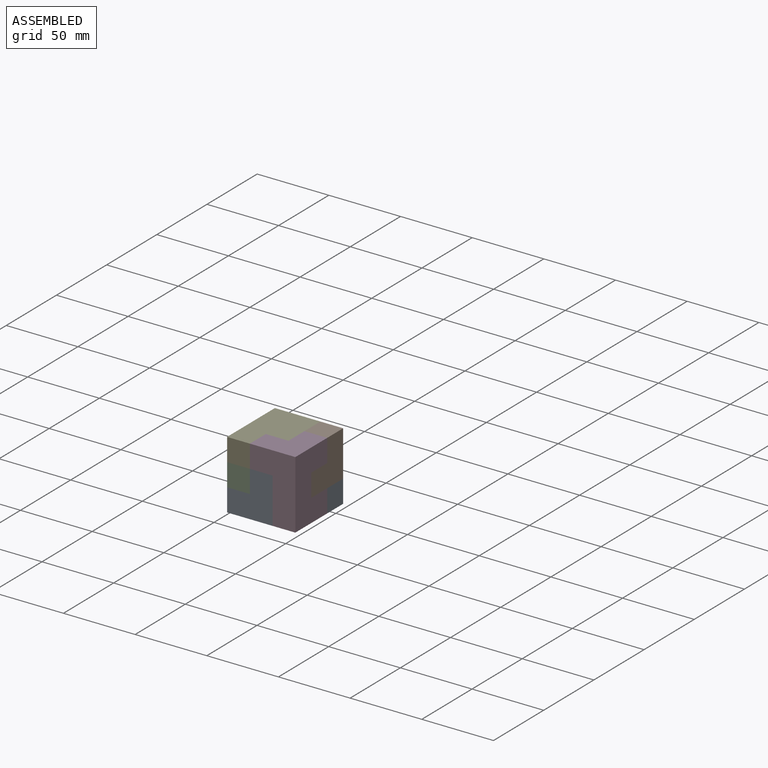
[diagram: assembled view]
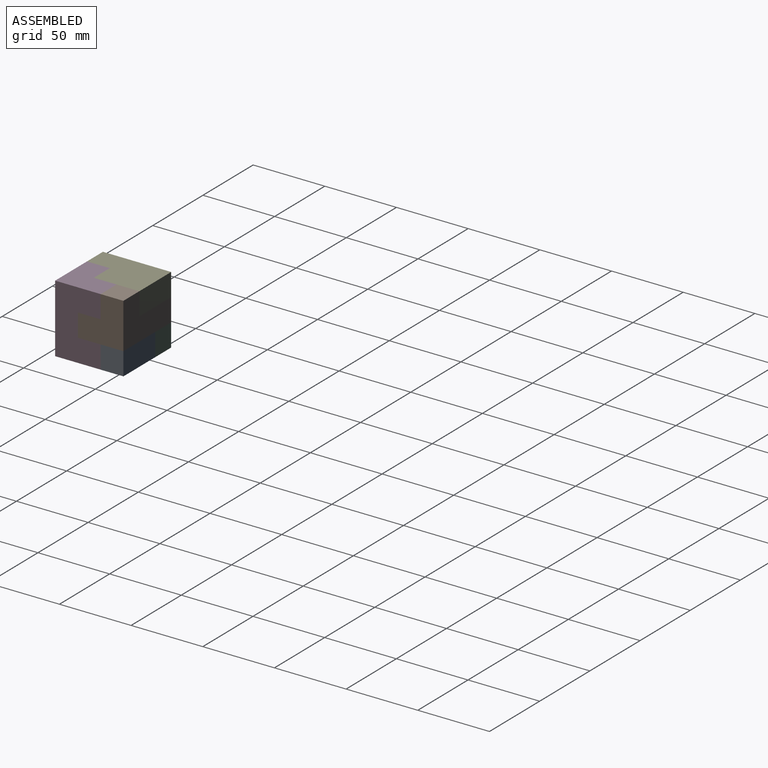
[diagram: assembled view, second angle]
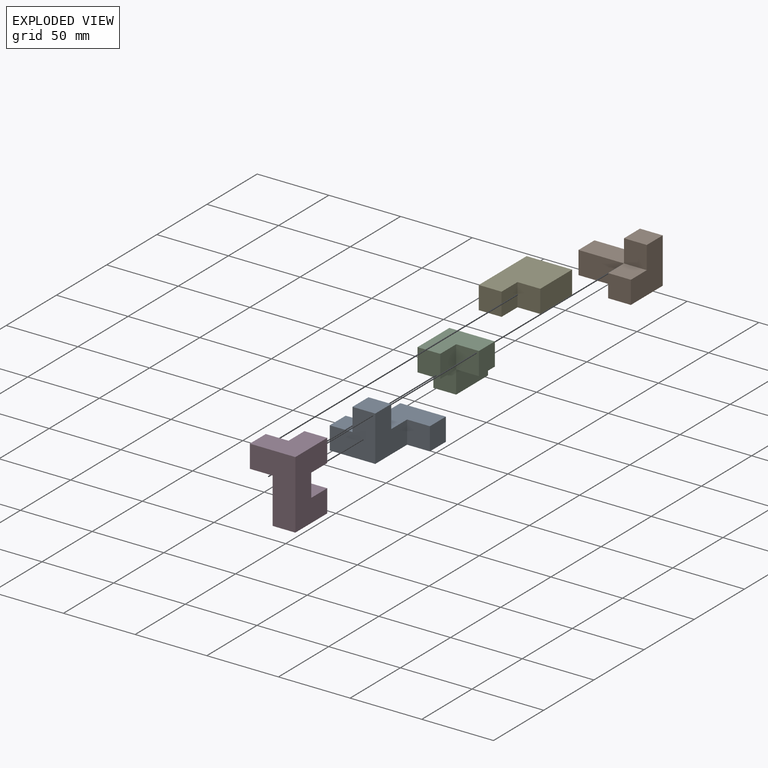
[diagram: exploded view]
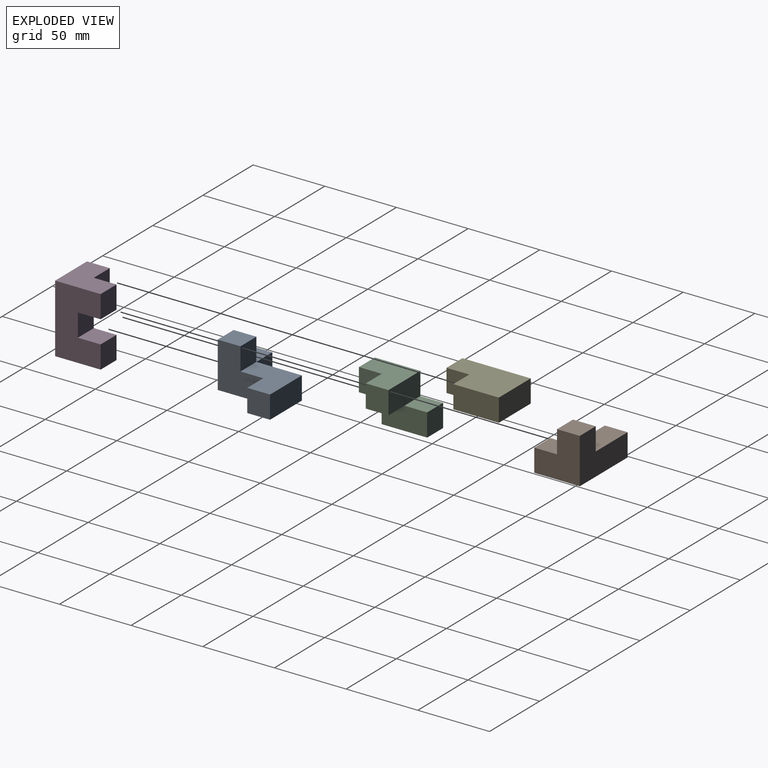
[diagram: exploded view, second angle]
ASSEMBLY  parts=5 mates=12
PART A: 14 faces, bbox 47.6x31.8x47.6 mm
  f0: plane 31.75x31.75mm, normal (1,0,0), area 756mm2, adj f3,f4,f5,f6,f10,f12
  f1: plane 15.88x15.88mm, normal (0,0,1), area 252mm2, adj f6,f7,f8,f9
  f2: plane 15.88x15.88mm, normal (-1,0,0), area 252mm2, adj f3,f4,f5,f7
  f3: plane 31.75x31.75mm, normal (0,0,-1), area 756mm2, adj f0,f2,f5,f6,f7,f8
  f4: plane 15.88x15.88mm, normal (0,0,1), area 252mm2, adj f0,f2,f5,f10
  f5: plane 15.88x15.88mm, normal (0,-1,0), area 252mm2, adj f0,f2,f3,f4
  f6: plane 47.63x47.63mm, normal (0,1,0), area 1260.1mm2, adj f0,f1,f3,f8,f9,f11,f12,f13
  f7: plane 15.88x15.88mm, normal (0,-1,0), area 252mm2, adj f1,f2,f3,f8
  f8: plane 15.88x15.88mm, normal (-1,0,0), area 252mm2, adj f1,f3,f6,f7
  f9: plane 31.75x15.88mm, normal (-1,0,0), area 504mm2, adj f1,f6,f10,f11
  f10: plane 31.75x31.75mm, normal (0,-1,0), area 756mm2, adj f0,f4,f9,f11,f12,f13
  f11: plane 31.75x15.88mm, normal (0,0,1), area 504mm2, adj f6,f9,f10,f13
  f12: plane 15.88x15.88mm, normal (0,0,-1), area 252mm2, adj f0,f6,f10,f13
  f13: plane 15.88x15.88mm, normal (1,0,0), area 252mm2, adj f6,f10,f11,f12
PART B: 12 faces, bbox 47.6x31.8x31.8 mm
  f0: plane 31.75x15.88mm, normal (0,-1,0), area 504mm2, adj f1,f4,f6,f9
  f1: plane 31.75x15.88mm, normal (0,0,-1), area 504mm2, adj f0,f3,f6,f7
  f2: plane 15.88x15.88mm, normal (0,-1,0), area 252mm2, adj f5,f7,f8,f10
  f3: plane 47.63x31.75mm, normal (0,1,0), area 1008.1mm2, adj f1,f4,f5,f6,f7,f8
  f4: plane 47.63x31.75mm, normal (0,0,1), area 1008.1mm2, adj f0,f3,f5,f6,f9,f11
  f5: plane 31.75x31.75mm, normal (1,0,0), area 756mm2, adj f2,f3,f4,f8,f10,f11
  f6: plane 15.88x15.88mm, normal (-1,0,0), area 252mm2, adj f0,f1,f3,f4
  f7: plane 15.88x15.88mm, normal (-1,0,0), area 252mm2, adj f1,f2,f3,f8
  f8: plane 15.88x15.88mm, normal (0,0,-1), area 252mm2, adj f2,f3,f5,f7
  f9: plane 15.88x15.88mm, normal (-1,0,0), area 252mm2, adj f0,f4,f10,f11
  f10: plane 15.88x15.88mm, normal (0,0,-1), area 252mm2, adj f2,f5,f9,f11
  f11: plane 15.88x15.88mm, normal (0,-1,0), area 252mm2, adj f4,f5,f9,f10
PART C: 14 faces, bbox 31.8x31.8x47.6 mm
  f0: plane 31.75x15.88mm, normal (0,0,1), area 504mm2, adj f1,f3,f4,f8,f12
  f1: plane 15.88x15.88mm, normal (-1,0,0), area 252mm2, adj f0,f7,f8,f9
  f2: plane 15.88x15.88mm, normal (-1,0,0), area 252mm2, adj f3,f5,f6,f10
  f3: plane 47.63x31.75mm, normal (0,-1,0), area 1008.1mm2, adj f0,f2,f4,f6,f10,f11,f12,f13
  f4: plane 31.75x31.75mm, normal (1,0,0), area 756mm2, adj f0,f3,f5,f6,f7,f8
  f5: plane 15.88x15.88mm, normal (0,1,0), area 252mm2, adj f2,f4,f6,f7
  f6: plane 15.88x15.88mm, normal (0,0,-1), area 252mm2, adj f2,f3,f4,f5
  f7: plane 15.88x15.88mm, normal (0,0,-1), area 252mm2, adj f1,f4,f5,f8
  f8: plane 15.88x15.88mm, normal (0,1,0), area 252mm2, adj f0,f1,f4,f7
  f9: plane 31.75x15.88mm, normal (0,1,0), area 504mm2, adj f1,f10,f11,f12,f13
  f10: plane 15.88x15.88mm, normal (0,0,-1), area 252mm2, adj f2,f3,f9,f11
  f11: plane 31.75x15.88mm, normal (-1,0,0), area 504mm2, adj f3,f9,f10,f13
  f12: plane 15.88x15.88mm, normal (1,0,0), area 252mm2, adj f0,f3,f9,f13
  f13: plane 15.88x15.88mm, normal (0,0,1), area 252mm2, adj f3,f9,f11,f12
PART D: 14 faces, bbox 47.6x31.8x31.8 mm
  f0: plane 31.75x31.75mm, normal (0,-1,0), area 756mm2, adj f6,f7,f8,f10,f12,f13
  f1: plane 31.75x31.75mm, normal (-1,0,0), area 756mm2, adj f2,f4,f5,f7,f9,f11
  f2: plane 15.88x15.88mm, normal (0,-1,0), area 252mm2, adj f1,f3,f5,f9
  f3: plane 15.88x15.88mm, normal (1,0,0), area 252mm2, adj f2,f4,f5,f6
  f4: plane 47.63x31.75mm, normal (0,1,0), area 1260.1mm2, adj f1,f3,f5,f6,f7,f8,f12,f13
  f5: plane 15.88x15.88mm, normal (0,0,-1), area 252mm2, adj f1,f2,f3,f4
  f6: plane 15.88x15.88mm, normal (0,0,-1), area 252mm2, adj f0,f3,f4,f12
  f7: plane 47.63x31.75mm, normal (0,0,1), area 1008.1mm2, adj f0,f1,f4,f8,f10,f11
  f8: plane 31.75x15.88mm, normal (1,0,0), area 504mm2, adj f0,f4,f7,f13
  f9: plane 15.88x15.88mm, normal (0,0,-1), area 252mm2, adj f1,f2,f10,f11
  f10: plane 15.88x15.88mm, normal (1,0,0), area 252mm2, adj f0,f7,f9,f11
  f11: plane 15.88x15.88mm, normal (0,-1,0), area 252mm2, adj f1,f7,f9,f10
  f12: plane 15.88x15.88mm, normal (-1,0,0), area 252mm2, adj f0,f4,f6,f13
  f13: plane 15.88x15.88mm, normal (0,0,-1), area 252mm2, adj f0,f4,f8,f12
PART E: 8 faces, bbox 31.8x15.9x47.6 mm
  f0: plane 47.63x15.88mm, normal (-1,0,0), area 756mm2, adj f1,f5,f6,f7
  f1: plane 31.75x15.88mm, normal (0,0,-1), area 504mm2, adj f0,f2,f6,f7
  f2: plane 31.75x15.88mm, normal (1,0,0), area 504mm2, adj f1,f3,f6,f7
  f3: plane 15.88x15.88mm, normal (0,0,1), area 252mm2, adj f2,f4,f6,f7
  f4: plane 15.88x15.88mm, normal (1,0,0), area 252mm2, adj f3,f5,f6,f7
  f5: plane 15.88x15.88mm, normal (0,0,1), area 252mm2, adj f0,f4,f6,f7
  f6: plane 47.63x31.75mm, normal (0,-1,0), area 1260.1mm2, adj f0,f1,f2,f3,f4,f5
  f7: plane 47.63x31.75mm, normal (0,1,0), area 1260.1mm2, adj f0,f1,f2,f3,f4,f5
PLACE A rot(axis=(-1,0,0),90deg) t=(9.45,-49.19,-30.73)mm
PLACE B rot(axis=(-1,0,0),90deg) t=(-6.43,-17.44,1.02)mm
PLACE C rot(axis=(-0.58,-0.58,-0.58),120deg) t=(-6.43,-49.19,-14.85)mm
PLACE D rot(axis=(0.58,0.58,-0.58),120deg) t=(25.32,-33.32,16.9)mm
PLACE E rot(axis=(1,0,0),90deg) t=(-6.43,-1.57,16.9)mm
MATE planar B.f5 <-> D.f4  axis (1,0,0) through (41.2,-14.8,-1.62)mm
MATE planar A.f3 <-> D.f7  axis (0,-1,0) through (12.09,-49.19,-17.5)mm
MATE planar C.f3 <-> E.f0  axis (-1,0,0) through (-6.43,-25.38,-14.85)mm
MATE planar B.f8 <-> D.f6  axis (0,-1,0) through (33.26,-33.32,-6.91)mm
MATE planar D.f2 <-> E.f2  axis (-1,0,0) through (25.32,-25.38,8.96)mm
MATE planar D.f9 <-> E.f3  axis (0,1,0) through (17.38,-33.32,8.96)mm
MATE planar E.f7 <-> D.f1  axis (0,0,1) through (7.86,-22.21,16.9)mm
MATE planar B.f11 <-> E.f7  axis (0,0,1) through (33.26,-9.51,16.9)mm
MATE planar C.f11 <-> D.f8  axis (0,0,-1) through (1.51,-17.44,-30.73)mm
MATE planar C.f6 <-> A.f3  axis (0,-1,0) through (1.51,-49.19,-6.91)mm
MATE planar A.f5 <-> D.f10  axis (0,0,1) through (17.38,-41.26,1.02)mm
MATE planar A.f13 <-> D.f4  axis (1,0,0) through (41.2,-9.51,-22.79)mm
